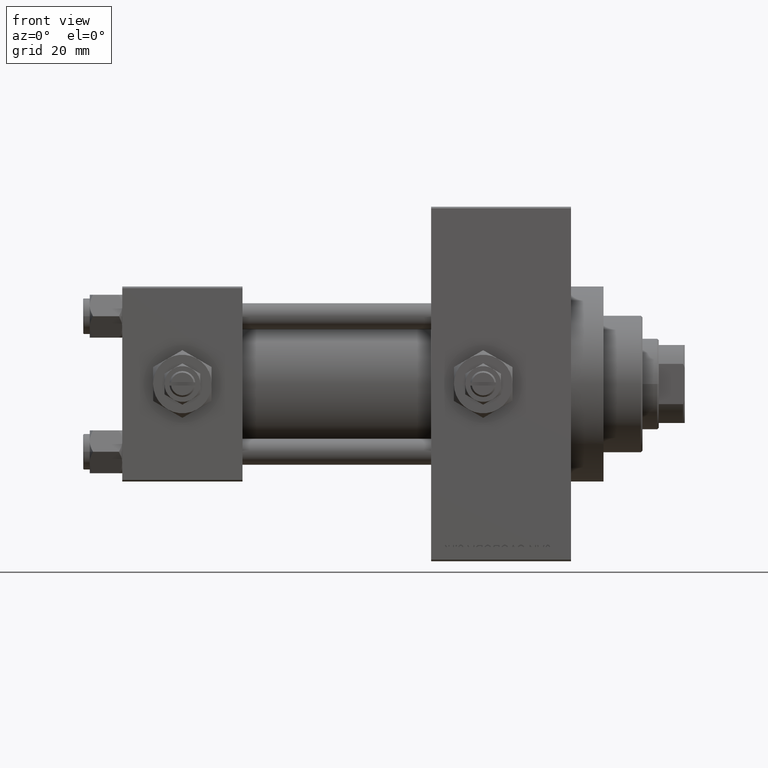
[diagram: clean part render]
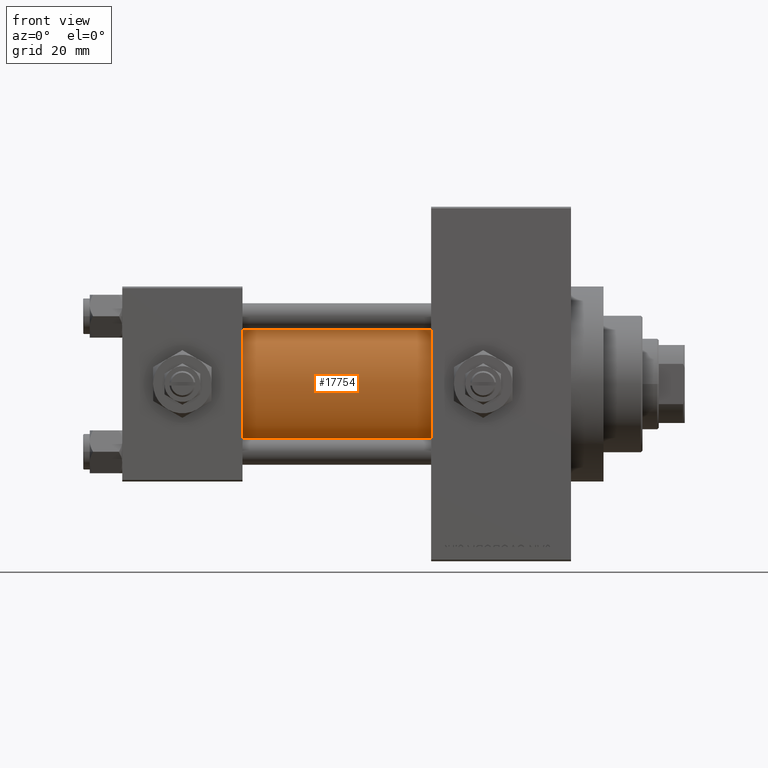
[diagram: same view with one face highlighted and labeled with its STEP entity id]
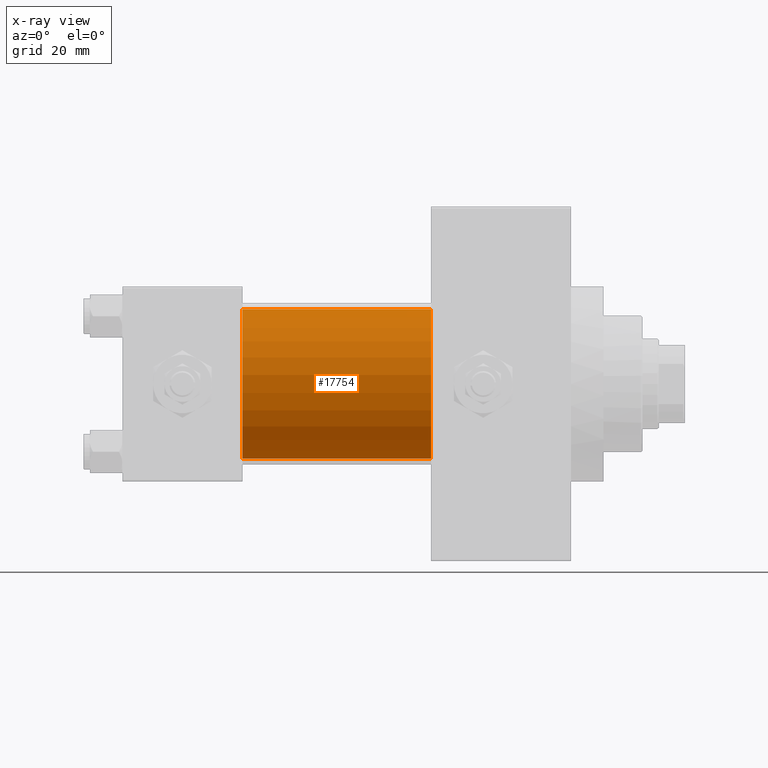
[diagram: x-ray of the same camera — body ghosted, the highlighted face saturated]
A machine part, front view. The second image highlights one B-rep face of the part: STEP entity #17754.
The next image is the same camera in x-ray: the body ghosted, the highlighted face saturated — about 0% of this face is hidden behind the body in this view.
In plain terms, the highlighted cylindrical surface (partial cylindrical patch) has radius 23 mm, axis along (-1, -0, -0).
Its self-contained STEP definition (entity closure, byte-faithful):
#299 = DIRECTION ( 'NONE',  ( 0.000000000000000000, 0.000000000000000000, 1.000000000000000000 ) ) ;
#481 = DIRECTION ( 'NONE',  ( 0.000000000000000000, 0.000000000000000000, -1.000000000000000000 ) ) ;
#1695 = FACE_OUTER_BOUND ( 'NONE', #18364, .T. ) ;
#3804 = CARTESIAN_POINT ( 'NONE',  ( 37.00000000000000000, -2.602085213965210642E-15, 0.000000000000000000 ) ) ;
#7937 = CARTESIAN_POINT ( 'NONE',  ( 37.00000000000000000, -2.602085213965210642E-15, 23.00000000000000000 ) ) ;
#7944 = CARTESIAN_POINT ( 'NONE',  ( 95.00000000000000000, -2.602085213965210642E-15, 23.00000000000000000 ) ) ;
#8574 = VECTOR ( 'NONE', #38537, 1000.000000000000000 ) ;
#8969 = ORIENTED_EDGE ( 'NONE', *, *, #24741, .T. ) ;
#9648 = VERTEX_POINT ( 'NONE', #27283 ) ;
#13102 = VERTEX_POINT ( 'NONE', #47080 ) ;
#14779 = AXIS2_PLACEMENT_3D ( 'NONE', #3804, #30625, #299 ) ;
#15035 = CARTESIAN_POINT ( 'NONE',  ( 95.00000000000000000, -2.602085213965210642E-15, 0.000000000000000000 ) ) ;
#15056 = ORIENTED_EDGE ( 'NONE', *, *, #35186, .F. ) ;
#15282 = DIRECTION ( 'NONE',  ( 1.000000000000000000, 0.000000000000000000, 0.000000000000000000 ) ) ;
#16982 = CYLINDRICAL_SURFACE ( 'NONE', #18204, 23.00000000000000000 ) ;
#17548 = EDGE_CURVE ( 'NONE', #13102, #23886, #30753, .T. ) ;
#17754 = ADVANCED_FACE ( 'NONE', ( #1695 ), #16982, .T. ) ;
#18204 = AXIS2_PLACEMENT_3D ( 'NONE', #32270, #22161, #47581 ) ;
#18364 = EDGE_LOOP ( 'NONE', ( #15056, #26318, #23893, #8969 ) ) ;
#20852 = CARTESIAN_POINT ( 'NONE',  ( 95.00000000000000000, 2.146024240737012665E-16, -23.00000000000000000 ) ) ;
#22161 = DIRECTION ( 'NONE',  ( -1.000000000000000000, -0.000000000000000000, -0.000000000000000000 ) ) ;
#22648 = VERTEX_POINT ( 'NONE', #20852 ) ;
#23456 = LINE ( 'NONE', #41550, #43098 ) ;
#23886 = VERTEX_POINT ( 'NONE', #7937 ) ;
#23893 = ORIENTED_EDGE ( 'NONE', *, *, #17548, .T. ) ;
#24741 = EDGE_CURVE ( 'NONE', #23886, #9648, #40423, .T. ) ;
#26318 = ORIENTED_EDGE ( 'NONE', *, *, #47229, .F. ) ;
#27283 = CARTESIAN_POINT ( 'NONE',  ( 37.00000000000000000, 2.146024240737012665E-16, -23.00000000000000000 ) ) ;
#30625 = DIRECTION ( 'NONE',  ( 1.000000000000000000, -0.000000000000000000, 0.000000000000000000 ) ) ;
#30753 = LINE ( 'NONE', #7944, #8574 ) ;
#32270 = CARTESIAN_POINT ( 'NONE',  ( 95.00000000000000000, -2.602085213965210642E-15, 0.000000000000000000 ) ) ;
#35186 = EDGE_CURVE ( 'NONE', #22648, #9648, #23456, .T. ) ;
#38537 = DIRECTION ( 'NONE',  ( -1.000000000000000000, -0.000000000000000000, -0.000000000000000000 ) ) ;
#40423 = CIRCLE ( 'NONE', #14779, 23.00000000000000000 ) ;
#41550 = CARTESIAN_POINT ( 'NONE',  ( 95.00000000000000000, 2.146024240737012665E-16, -23.00000000000000000 ) ) ;
#42288 = DIRECTION ( 'NONE',  ( -1.000000000000000000, -0.000000000000000000, -0.000000000000000000 ) ) ;
#43098 = VECTOR ( 'NONE', #42288, 1000.000000000000000 ) ;
#44528 = CIRCLE ( 'NONE', #46932, 23.00000000000000000 ) ;
#46932 = AXIS2_PLACEMENT_3D ( 'NONE', #15035, #15282, #481 ) ;
#47080 = CARTESIAN_POINT ( 'NONE',  ( 95.00000000000000000, -2.602085213965210642E-15, 23.00000000000000000 ) ) ;
#47229 = EDGE_CURVE ( 'NONE', #13102, #22648, #44528, .T. ) ;
#47581 = DIRECTION ( 'NONE',  ( 0.000000000000000000, 0.000000000000000000, 1.000000000000000000 ) ) ;